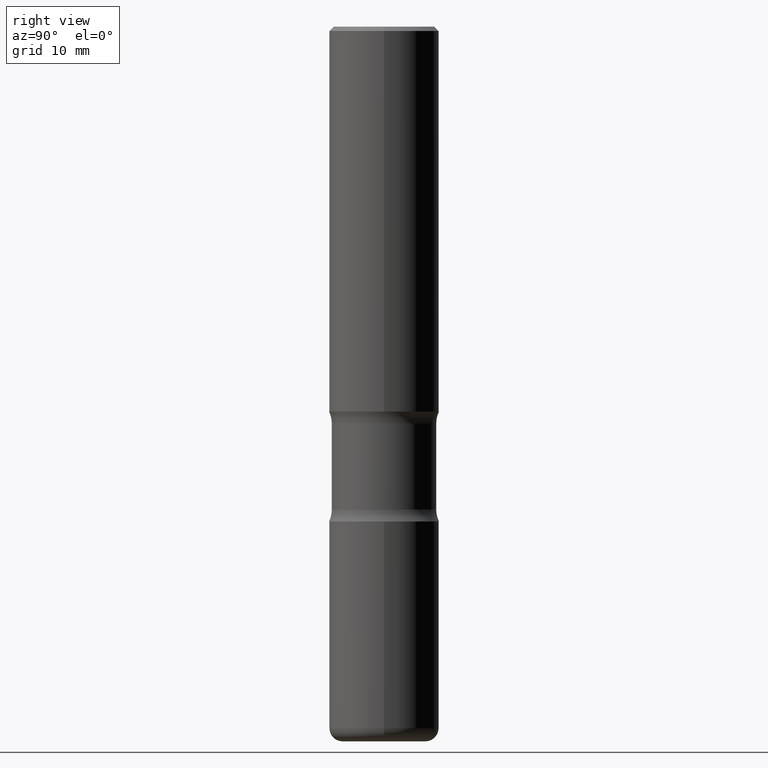
[diagram: clean part render]
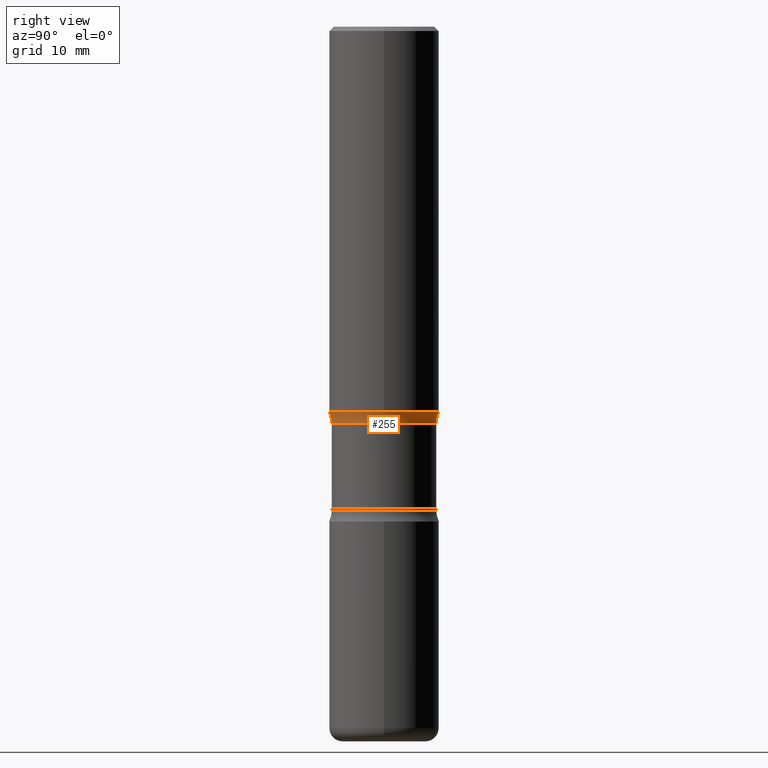
[diagram: same view with one face highlighted and labeled with its STEP entity id]
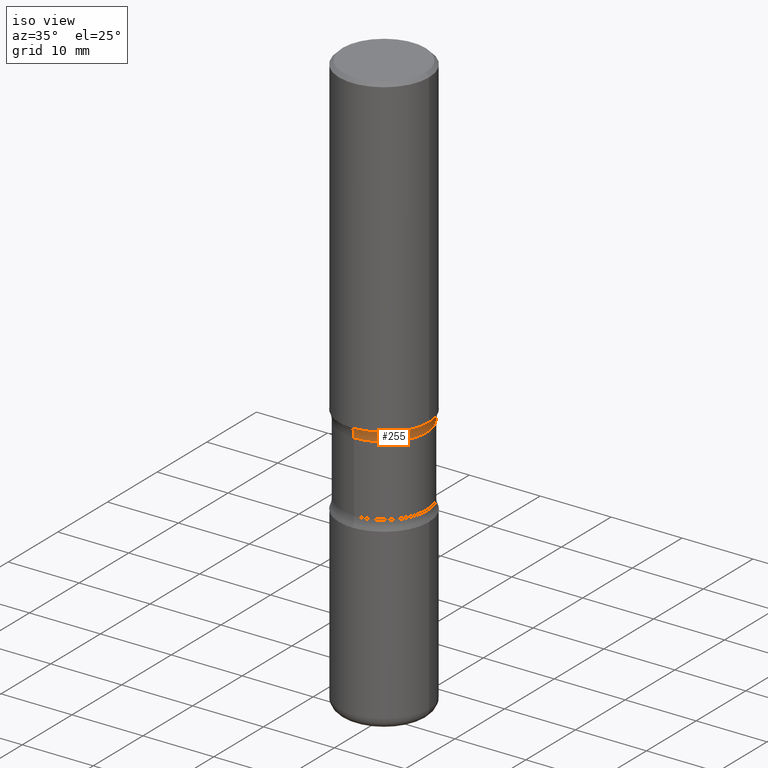
[diagram: same view with one face highlighted and labeled with its STEP entity id]
A machine part, right view. The second image highlights one B-rep face of the part: STEP entity #255.
A second angle (iso view) of the same face is appended — the face is thin or edge-on in the first view.
In plain terms, the highlighted toroidal blend (fillet) surface has major radius 9.2075 mm and minor (blend) radius 3.175 mm.
Its self-contained STEP definition (entity closure, byte-faithful):
#7 = EDGE_CURVE ( 'NONE', #17, #112, #257, .T. ) ;
#17 = VERTEX_POINT ( 'NONE', #242 ) ;
#26 = DIRECTION ( 'NONE',  ( 6.982962677686266711E-15, 1.000000000000000000, -3.450755360418023049E-15 ) ) ;
#31 = CARTESIAN_POINT ( 'NONE',  ( 4.367344111887250941E-29, -5.984395407284106534E-15, -1.750000000000001332 ) ) ;
#45 = AXIS2_PLACEMENT_3D ( 'NONE', #413, #342, #293 ) ;
#53 = EDGE_CURVE ( 'NONE', #321, #106, #434, .T. ) ;
#59 = AXIS2_PLACEMENT_3D ( 'NONE', #479, #395, #364 ) ;
#74 = DIRECTION ( 'NONE',  ( 6.860497997771532351E-15, 1.000000000000000000, 0.000000000000000000 ) ) ;
#78 = DIRECTION ( 'NONE',  ( 2.269921404058617848E-29, -3.742875210225950140E-15, -1.000000000000000000 ) ) ;
#106 = VERTEX_POINT ( 'NONE', #254 ) ;
#112 = VERTEX_POINT ( 'NONE', #397 ) ;
#113 = CARTESIAN_POINT ( 'NONE',  ( -2.486930524192133333E-15, -0.3625000000000058731, -1.804486236794259568 ) ) ;
#148 = EDGE_CURVE ( 'NONE', #112, #106, #509, .T. ) ;
#155 = EDGE_LOOP ( 'NONE', ( #235, #275, #367, #355 ) ) ;
#233 = DIRECTION ( 'NONE',  ( 1.000000000000000000, -6.860497997771530774E-15, 4.837720192625000670E-29 ) ) ;
#235 = ORIENTED_EDGE ( 'NONE', *, *, #148, .F. ) ;
#237 = TOROIDAL_SURFACE ( 'NONE', #59, 0.3624999999999997113, 0.1250000000000000278 ) ;
#242 = CARTESIAN_POINT ( 'NONE',  ( 1.658453635950530153E-15, 0.2374999999999934108, -1.804486236794262233 ) ) ;
#254 = CARTESIAN_POINT ( 'NONE',  ( -1.715124499442841278E-15, -0.2500000000000062172, -1.750000000000000444 ) ) ;
#255 = ADVANCED_FACE ( 'NONE', ( #280 ), #237, .F. ) ;
#257 = CIRCLE ( 'NONE', #471, 0.2374999999999995726 ) ;
#275 = ORIENTED_EDGE ( 'NONE', *, *, #7, .F. ) ;
#280 = FACE_OUTER_BOUND ( 'NONE', #155, .T. ) ;
#285 = CIRCLE ( 'NONE', #45, 0.1250000000000000278 ) ;
#293 = DIRECTION ( 'NONE',  ( -6.982962677686265133E-15, -1.000000000000000000, 0.000000000000000000 ) ) ;
#321 = VERTEX_POINT ( 'NONE', #340 ) ;
#329 = CARTESIAN_POINT ( 'NONE',  ( 4.491023587013149728E-29, -6.188330592279845103E-15, -1.804486236794261567 ) ) ;
#340 = CARTESIAN_POINT ( 'NONE',  ( 1.745740669421611445E-15, 0.2499999999999942546, -1.750000000000001998 ) ) ;
#342 = DIRECTION ( 'NONE',  ( -1.000000000000000000, 6.982962677686265922E-15, -4.883557194083112340E-29 ) ) ;
#345 = EDGE_CURVE ( 'NONE', #17, #321, #285, .T. ) ;
#355 = ORIENTED_EDGE ( 'NONE', *, *, #53, .T. ) ;
#364 = DIRECTION ( 'NONE',  ( 6.982962677686265922E-15, 1.000000000000000000, -3.742875210225950140E-15 ) ) ;
#367 = ORIENTED_EDGE ( 'NONE', *, *, #345, .T. ) ;
#370 = AXIS2_PLACEMENT_3D ( 'NONE', #31, #540, #548 ) ;
#395 = DIRECTION ( 'NONE',  ( 2.269921404058617848E-29, -3.742875210225950140E-15, -1.000000000000000000 ) ) ;
#397 = CARTESIAN_POINT ( 'NONE',  ( -1.672246386956765893E-15, -0.2375000000000057621, -1.804486236794260678 ) ) ;
#413 = CARTESIAN_POINT ( 'NONE',  ( 2.531323970661313492E-15, 0.3624999999999934941, -1.804486236794262233 ) ) ;
#434 = CIRCLE ( 'NONE', #370, 0.2500000000000002220 ) ;
#471 = AXIS2_PLACEMENT_3D ( 'NONE', #329, #78, #26 ) ;
#472 = AXIS2_PLACEMENT_3D ( 'NONE', #113, #233, #74 ) ;
#479 = CARTESIAN_POINT ( 'NONE',  ( 4.460505784722945109E-29, -6.232033822124849427E-15, -1.804486236794260900 ) ) ;
#509 = CIRCLE ( 'NONE', #472, 0.1250000000000000278 ) ;
#540 = DIRECTION ( 'NONE',  ( 2.269921404058617848E-29, -3.742875210225950140E-15, -1.000000000000000000 ) ) ;
#548 = DIRECTION ( 'NONE',  ( 6.982962677686265133E-15, 1.000000000000000000, -3.278217592397113101E-15 ) ) ;